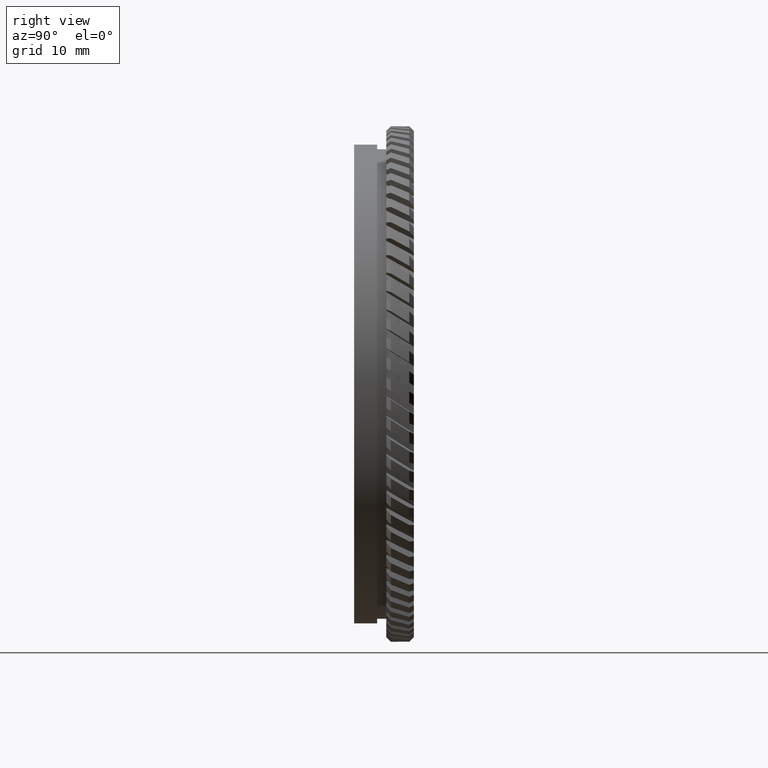
[diagram: clean part render]
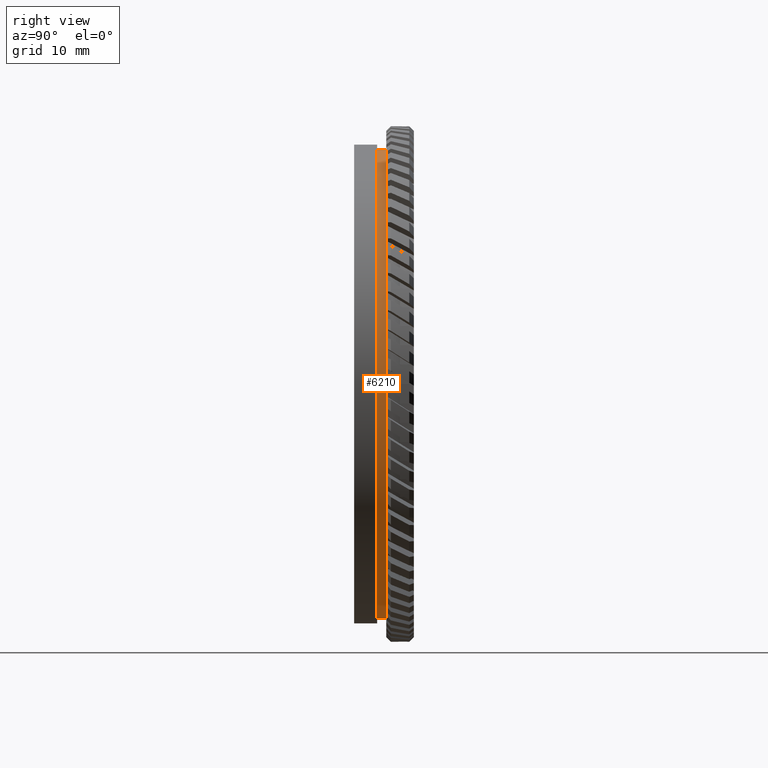
[diagram: same view with one face highlighted and labeled with its STEP entity id]
A machine part, right view. The second image highlights one B-rep face of the part: STEP entity #6210.
In plain terms, the highlighted cylindrical surface (partial cylindrical patch) has radius 25.5 mm, axis along (-0, 1, -0).
Its self-contained STEP definition (entity closure, byte-faithful):
#318 = CIRCLE ( 'NONE', #4622, 25.50000000000000000 ) ;
#428 = ORIENTED_EDGE ( 'NONE', *, *, #18933, .F. ) ;
#1544 = DIRECTION ( 'NONE',  ( -0.0000000000000000000, 1.000000000000000000, -0.0000000000000000000 ) ) ;
#1759 = DIRECTION ( 'NONE',  ( -0.0000000000000000000, 1.000000000000000000, -0.0000000000000000000 ) ) ;
#2074 = CARTESIAN_POINT ( 'NONE',  ( 0.0000000000000000000, 18.87125740523061500, 25.50000000000000400 ) ) ;
#3127 = CARTESIAN_POINT ( 'NONE',  ( 0.0000000000000000000, 17.87125740523061500, 25.50000000000000000 ) ) ;
#3332 = VECTOR ( 'NONE', #14897, 1000.000000000000000 ) ;
#4622 = AXIS2_PLACEMENT_3D ( 'NONE', #5102, #17320, #15942 ) ;
#5102 = CARTESIAN_POINT ( 'NONE',  ( 0.0000000000000000000, 17.87125740523061500, 0.0000000000000000000 ) ) ;
#5330 = VERTEX_POINT ( 'NONE', #2074 ) ;
#5507 = VERTEX_POINT ( 'NONE', #16194 ) ;
#5612 = CARTESIAN_POINT ( 'NONE',  ( 0.0000000000000000000, 66.62876213592232900, 25.50000000000000400 ) ) ;
#6201 = ORIENTED_EDGE ( 'NONE', *, *, #11513, .T. ) ;
#6210 = ADVANCED_FACE ( 'NONE', ( #10175 ), #6462, .T. ) ;
#6295 = LINE ( 'NONE', #5612, #3332 ) ;
#6462 = CYLINDRICAL_SURFACE ( 'NONE', #9776, 25.50000000000000400 ) ;
#7947 = ORIENTED_EDGE ( 'NONE', *, *, #10097, .F. ) ;
#8110 = DIRECTION ( 'NONE',  ( -0.0000000000000000000, 1.000000000000000000, -0.0000000000000000000 ) ) ;
#9294 = ORIENTED_EDGE ( 'NONE', *, *, #14650, .T. ) ;
#9776 = AXIS2_PLACEMENT_3D ( 'NONE', #9784, #8110, #14258 ) ;
#9784 = CARTESIAN_POINT ( 'NONE',  ( 0.0000000000000000000, 66.62876213592232900, 0.0000000000000000000 ) ) ;
#10097 = EDGE_CURVE ( 'NONE', #5330, #10670, #16469, .T. ) ;
#10175 = FACE_OUTER_BOUND ( 'NONE', #11071, .T. ) ;
#10670 = VERTEX_POINT ( 'NONE', #12940 ) ;
#11071 = EDGE_LOOP ( 'NONE', ( #6201, #9294, #7947, #428 ) ) ;
#11513 = EDGE_CURVE ( 'NONE', #13038, #5507, #318, .T. ) ;
#12706 = VECTOR ( 'NONE', #1544, 1000.000000000000000 ) ;
#12940 = CARTESIAN_POINT ( 'NONE',  ( 3.122849337825751800E-015, 18.87125740523061500, -25.50000000000000700 ) ) ;
#13038 = VERTEX_POINT ( 'NONE', #3127 ) ;
#14100 = CARTESIAN_POINT ( 'NONE',  ( 3.122849337825751000E-015, 66.62876213592232900, -25.50000000000000400 ) ) ;
#14176 = CARTESIAN_POINT ( 'NONE',  ( 0.0000000000000000000, 18.87125740523061500, 0.0000000000000000000 ) ) ;
#14258 = DIRECTION ( 'NONE',  ( 0.0000000000000000000, 0.0000000000000000000, 1.000000000000000000 ) ) ;
#14650 = EDGE_CURVE ( 'NONE', #5507, #10670, #16856, .T. ) ;
#14897 = DIRECTION ( 'NONE',  ( -0.0000000000000000000, 1.000000000000000000, -0.0000000000000000000 ) ) ;
#15942 = DIRECTION ( 'NONE',  ( 0.0000000000000000000, 0.0000000000000000000, 1.000000000000000000 ) ) ;
#16194 = CARTESIAN_POINT ( 'NONE',  ( 3.122849337825750600E-015, 17.87125740523061500, -25.50000000000000000 ) ) ;
#16469 = CIRCLE ( 'NONE', #19876, 25.50000000000000400 ) ;
#16856 = LINE ( 'NONE', #14100, #12706 ) ;
#17320 = DIRECTION ( 'NONE',  ( -0.0000000000000000000, 1.000000000000000000, -0.0000000000000000000 ) ) ;
#18854 = DIRECTION ( 'NONE',  ( 0.0000000000000000000, 0.0000000000000000000, 1.000000000000000000 ) ) ;
#18933 = EDGE_CURVE ( 'NONE', #13038, #5330, #6295, .T. ) ;
#19876 = AXIS2_PLACEMENT_3D ( 'NONE', #14176, #1759, #18854 ) ;